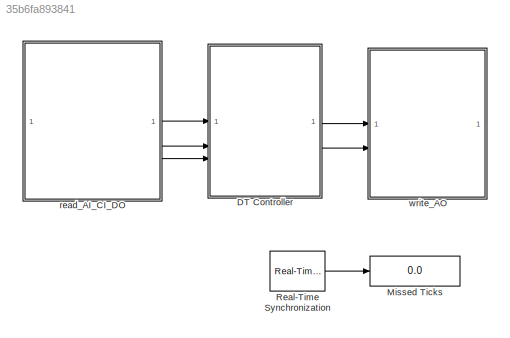
MODEL slx_35b6fa893841
KIND model
CONFIG AbsTol = auto
CONFIG EnableMultiTasking = off
CONFIG FixedStep = T
CONFIG MaxStep = 0.015
CONFIG MinStep = auto
CONFIG RelTol = 1e-3
CONFIG SampleTimeConstraint = Unconstrained
CONFIG SolverName = FixedStepAuto
CONFIG StartTime = 0.0
CONFIG StopFcn = stopHeli_allTasks\ndaqreset
CONFIG StopTime = 60
WORKSPACE source: external: MAT-File  (data not in archive)
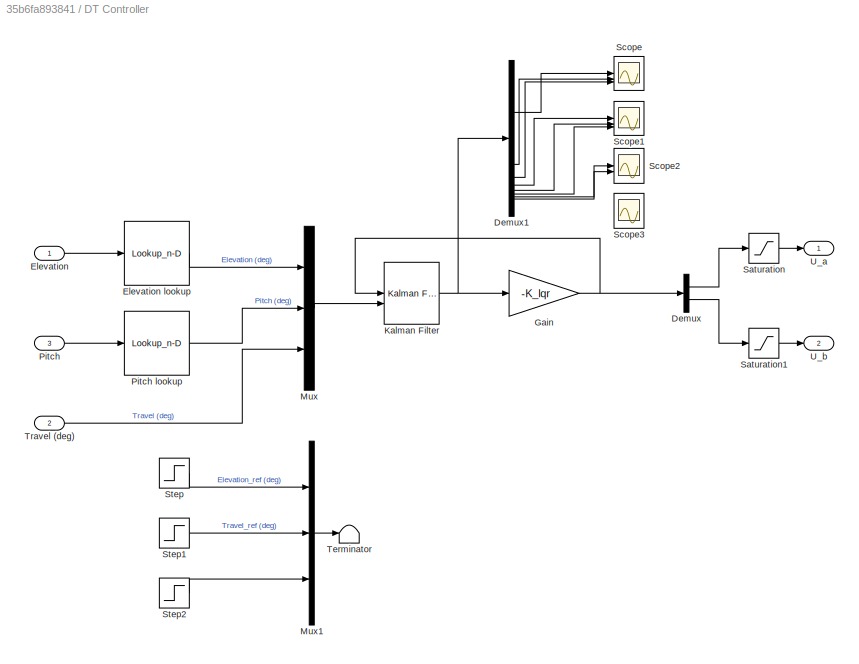
BLOCK [SubSystem] DT Controller
BLOCK [Lookup_n-D] DT Controller/ Pitch lookup
  BreakpointsForDimension1 = PitchAxisData.Var2
  InputPortMap = u0
  InternalRulePriority = Speed
  LookupTableObject = PitchAxisData
  NumberOfTableDimensions = 1
  RndMeth = Simplest
  Table = PitchAxisData.Var1
BLOCK [Demux] DT Controller/Demux
  Outputs = 2
BLOCK [Demux] DT Controller/Demux1
  Outputs = nx
BLOCK [Inport] DT Controller/Elevation
BLOCK [Lookup_n-D] DT Controller/Elevation lookup
  BreakpointsForDimension1 = ElevAxisData.Var2
  InputPortMap = u0
  InternalRulePriority = Speed
  LookupTableObject = PitchAxisData
  NumberOfTableDimensions = 1
  RndMeth = Simplest
  Table = ElevAxisData.Var1
BLOCK [Gain] DT Controller/Gain
  Gain = -K_lqr
  Multiplication = Matrix(K*u)
BLOCK [Reference] DT Controller/Kalman Filter  REF=ctrlSharedLib/Kalman Filter
  LibrarySourceBlock = cstblocks/State Estimation/Kalman Filter
  SourceBlock = ctrlSharedLib/Kalman Filter
  SourceType = ctrlKalmanFilter
BLOCK [Mux] DT Controller/Mux
  DisplayOption = bar
  Inputs = 3
BLOCK [Mux] DT Controller/Mux1
  DisplayOption = bar
  Inputs = 3
BLOCK [Inport] DT Controller/Pitch
  Port = 3
BLOCK [Saturate] DT Controller/Saturation
  LowerLimit = 3
  UpperLimit = 10
BLOCK [Saturate] DT Controller/Saturation1
  LowerLimit = 3
  UpperLimit = 10
BLOCK [Scope] DT Controller/Scope
  Floating = off
  NumInputPorts = 3
  ScopeSpecificationString = Simulink.scopes.TimeScopeBlockCfg('CurrentConfiguration', extmgr.ConfigurationSet(extmgr.Configuration('Core','General UI',true),extmgr.Configuration('Core','Source UI',true),extmgr.Configuration('Sources','WiredSimulink',true),extmgr.Configuration('Visuals','Time Domain',true,'SerializedDisplays',{struct('MinYLimReal','-157.16847','MaxYLimReal','762.46259','YLabelReal','','MinYLimMag',' 0.00000',...<+1480ch>
BLOCK [Scope] DT Controller/Scope1
  Floating = off
  NumInputPorts = 3
  ScopeSpecificationString = Simulink.scopes.TimeScopeBlockCfg('CurrentConfiguration', extmgr.ConfigurationSet(extmgr.Configuration('Core','General UI',true),extmgr.Configuration('Core','Source UI',true),extmgr.Configuration('Sources','WiredSimulink',true,'DataLoggingVariableName','ScopeData1'),extmgr.Configuration('Visuals','Time Domain',true,'SerializedDisplays',{struct('MinYLimReal','-155.27128','MaxYLimReal','193.16247','...<+1519ch>
BLOCK [Scope] DT Controller/Scope2
  Floating = off
  NumInputPorts = 2
  ScopeSpecificationString = Simulink.scopes.TimeScopeBlockCfg('CurrentConfiguration', extmgr.ConfigurationSet(extmgr.Configuration('Core','General UI',true),extmgr.Configuration('Core','Source UI',true),extmgr.Configuration('Sources','WiredSimulink',true,'DataLoggingVariableName','ScopeData2'),extmgr.Configuration('Visuals','Time Domain',true,'SerializedDisplays',{struct('MinYLimReal','-2.05782','MaxYLimReal','1.68057','YLab...<+1494ch>
BLOCK [Scope] DT Controller/Scope3
  Floating = off
  NumInputPorts = 2
  ScopeSpecificationString = Simulink.scopes.TimeScopeBlockCfg('CurrentConfiguration', extmgr.ConfigurationSet(extmgr.Configuration('Core','General UI',true),extmgr.Configuration('Core','Source UI',true),extmgr.Configuration('Sources','WiredSimulink',true,'DataLoggingVariableName','ScopeData3'),extmgr.Configuration('Visuals','Time Domain',true,'SerializedDisplays',{struct('MinYLimReal','-169.85647','MaxYLimReal','720.84468','...<+1668ch>
BLOCK [Step] DT Controller/Step
  After = 0
  SampleTime = T
  Time = 0
BLOCK [Step] DT Controller/Step1
  After = 0
  SampleTime = T
  Time = 0
BLOCK [Step] DT Controller/Step2
  After = 0
  SampleTime = T
  Time = 0
BLOCK [Terminator] DT Controller/Terminator
BLOCK [Inport] DT Controller/Travel (deg)
  Port = 2
BLOCK [Outport] DT Controller/U_a
BLOCK [Outport] DT Controller/U_b
  Port = 2
BLOCK [Display] Missed Ticks
  Decimation = 1
BLOCK [Reference] Real-Time Synchronization  REF=sldrtlib/Real-Time
Synchronization
  SourceBlock = sldrtlib/Real-Time\nSynchronization
  SourceType = Simulink Desktop Real-Time Synchronization
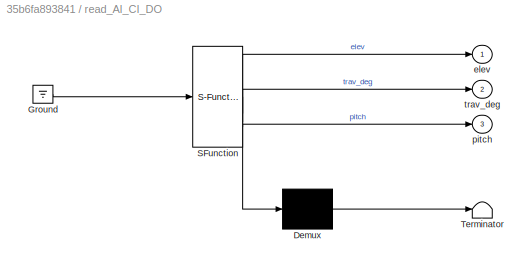
BLOCK [SubSystem] read_AI_CI_DO
  ErrorFcn = Stateflow.Translate.translate
  PermitHierarchicalResolution = ExplicitOnly
  SFBlockType = MATLAB Function
  TreatAsAtomicUnit = on
BLOCK [Demux] read_AI_CI_DO/ Demux 
  Outputs = 1
BLOCK [Ground] read_AI_CI_DO/ Ground 
BLOCK [S-Function] read_AI_CI_DO/ SFunction 
  EnableBusSupport = on
  FunctionName = sf_sfun
  PortCounts = [1 4]
  SFcnIsStateOwnerBlock = off
  SFunctionDeploymentMode = off
  Tag = Stateflow S-Function 7
BLOCK [Terminator] read_AI_CI_DO/ Terminator 
BLOCK [Outport] read_AI_CI_DO/elev
BLOCK [Outport] read_AI_CI_DO/pitch
  Port = 3
BLOCK [Outport] read_AI_CI_DO/trav_deg
  Port = 2
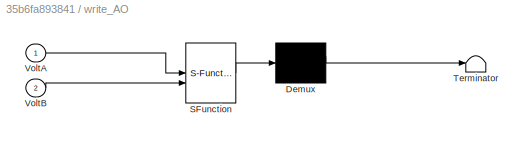
BLOCK [SubSystem] write_AO
  ErrorFcn = Stateflow.Translate.translate
  PermitHierarchicalResolution = ExplicitOnly
  SFBlockType = MATLAB Function
  TreatAsAtomicUnit = on
BLOCK [Demux] write_AO/ Demux 
  Outputs = 1
BLOCK [S-Function] write_AO/ SFunction 
  EnableBusSupport = on
  FunctionName = sf_sfun
  PortCounts = [2 1]
  SFcnIsStateOwnerBlock = off
  SFunctionDeploymentMode = off
  Tag = Stateflow S-Function 2
BLOCK [Terminator] write_AO/ Terminator 
BLOCK [Inport] write_AO/VoltA
BLOCK [Inport] write_AO/VoltB
  Port = 2
LINE DT Controller/ Pitch lookup:1 -> DT Controller/Mux:2
LINE DT Controller/Demux1:1 -> DT Controller/Scope:1
LINE DT Controller/Demux1:2 -> DT Controller/Scope:2
LINE DT Controller/Demux1:3 -> DT Controller/Scope:3
LINE DT Controller/Demux1:4 -> DT Controller/Scope1:1
LINE DT Controller/Demux1:5 -> DT Controller/Scope1:2
LINE DT Controller/Demux1:6 -> DT Controller/Scope1:3
LINE DT Controller/Demux1:7 -> DT Controller/Scope2:1
LINE DT Controller/Demux1:8 -> DT Controller/Scope2:2
LINE DT Controller/Demux:1 -> DT Controller/Saturation:1
LINE DT Controller/Demux:2 -> DT Controller/Saturation1:1
LINE DT Controller/Elevation lookup:1 -> DT Controller/Mux:1
LINE DT Controller/Elevation:1 -> DT Controller/Elevation lookup:1
NET DT Controller/Gain:1 -> DT Controller/Demux:1, DT Controller/Kalman Filter:1
NET DT Controller/Kalman Filter:1 -> DT Controller/Demux1:1, DT Controller/Gain:1
LINE DT Controller/Mux1:1 -> DT Controller/Terminator:1
LINE DT Controller/Mux:1 -> DT Controller/Kalman Filter:2
LINE DT Controller/Pitch:1 -> DT Controller/ Pitch lookup:1
LINE DT Controller/Saturation1:1 -> DT Controller/U_b:1
LINE DT Controller/Saturation:1 -> DT Controller/U_a:1
LINE DT Controller/Step1:1 -> DT Controller/Mux1:2
LINE DT Controller/Step2:1 -> DT Controller/Mux1:3
LINE DT Controller/Step:1 -> DT Controller/Mux1:1
LINE DT Controller/Travel (deg):1 -> DT Controller/Mux:3
LINE DT Controller:1 -> write_AO:1
LINE DT Controller:2 -> write_AO:2
LINE Real-Time Synchronization:1 -> Missed Ticks:1
LINE read_AI_CI_DO:1 -> DT Controller:1
LINE read_AI_CI_DO:2 -> DT Controller:2
LINE read_AI_CI_DO:3 -> DT Controller:3
note: NET lines group one-source signal fan-out (src -> all destinations, sorted); 1:1 wires keep LINE
CHART read_AI_CI_DO states=1 transitions=1
  STATE_LABEL 'eML_blk_kernel()'
  STATE_LABEL "SCRIPT:\nfunction [elev,trav_deg,pitch] = read_AI_CI_DO()\n% The functions from the NI library to read and write inputs and outpus \n% cannot be compiled and we need to use the coder.extrinsic.\n% Functions in common to all \ncoder.extrinsic('NI_DAQmxCreateTask','NI_DAQmxStartTask','assignin');\n%Functions to read AI\ncoder.extrinsic('daq.ni.NIDAQmx.DAQmx_Val_Diff','NI_DAQmxCreateAIVoltageChan',...\n    '...<+2323ch>"
CHART write_AO states=1 transitions=1
  STATE_LABEL 'eML_blk_kernel()'
  STATE_LABEL "SCRIPT:\nfunction write_AO(VoltA,VoltB)\n% The functions from the NI library to write outpus cannot be compiled \n% and we need to use the coder.extrinsic.\n% Functions in common to all  \ncoder.extrinsic('NI_DAQmxCreateTask','NI_DAQmxStartTask', 'assignin');\n% Functions to write AO\ncoder.extrinsic('NI_DAQmxCreateAOVoltageChan','NI_DAQmxWriteAnalogF64',...\n    'daq.ni.NIDAQmx.DAQmx_Val_Volts');\n%% Conf...<+540ch>"
CHART  states=0 transitions=0
CHART  states=0 transitions=0
